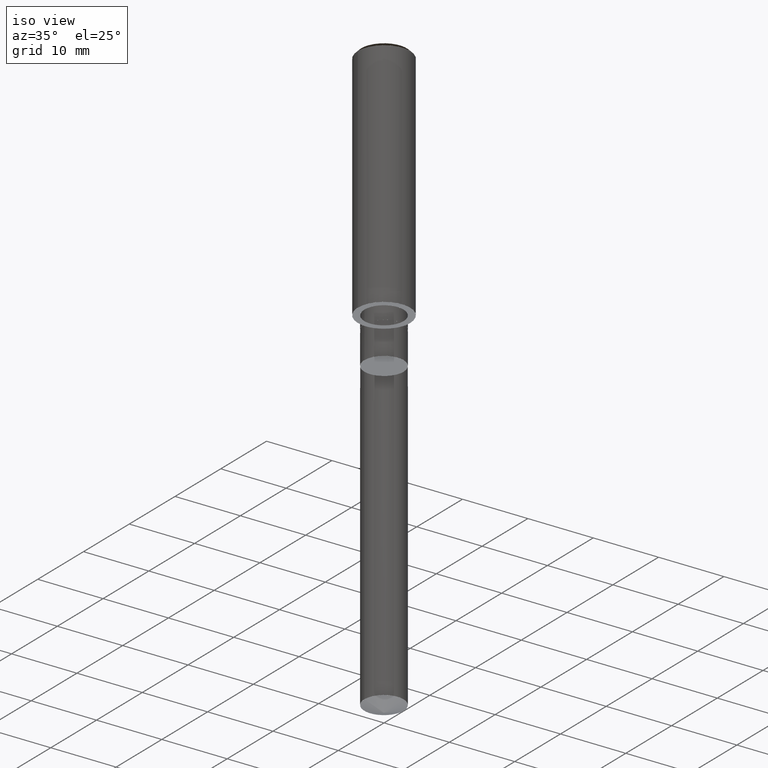
[diagram: clean part render]
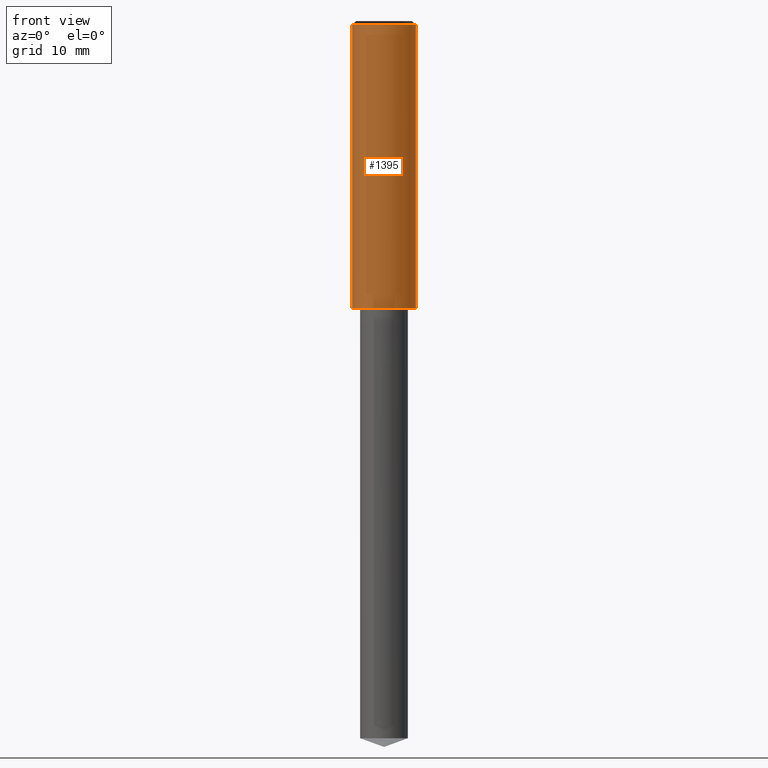
[diagram: tour spotlight — one face highlighted and labeled with its STEP entity id]
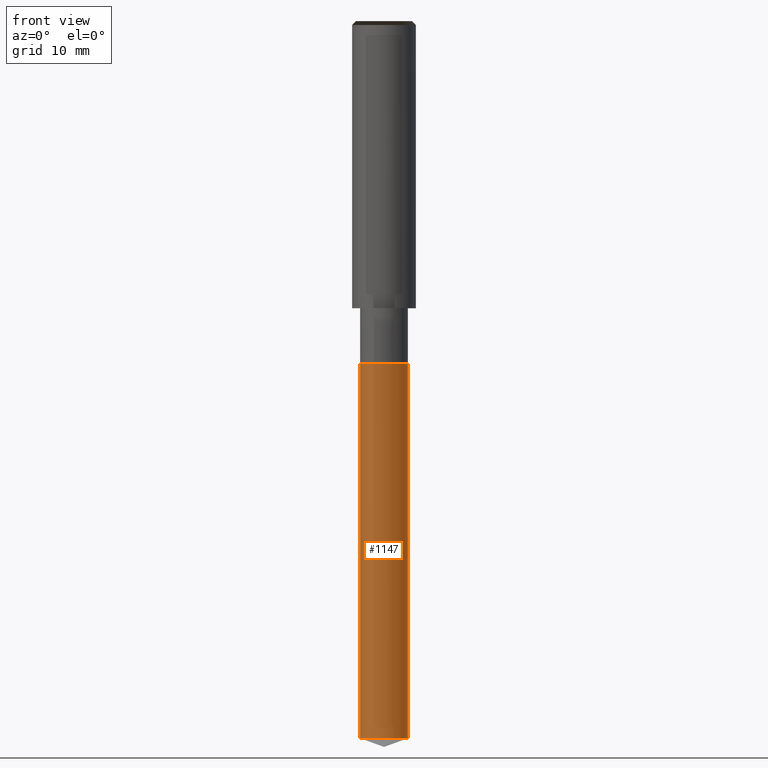
[diagram: tour spotlight — one face highlighted and labeled with its STEP entity id]
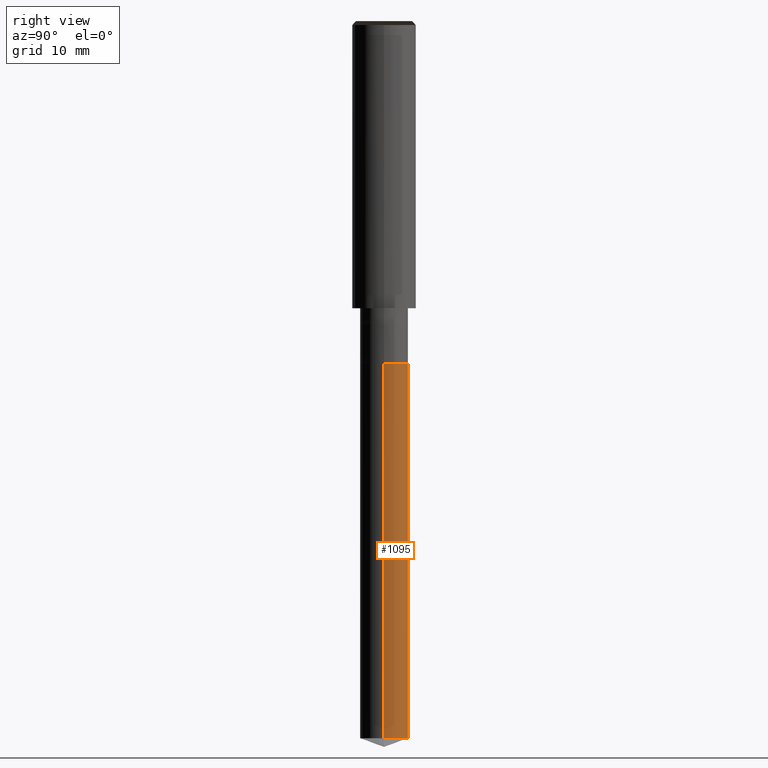
[diagram: tour spotlight — one face highlighted and labeled with its STEP entity id]
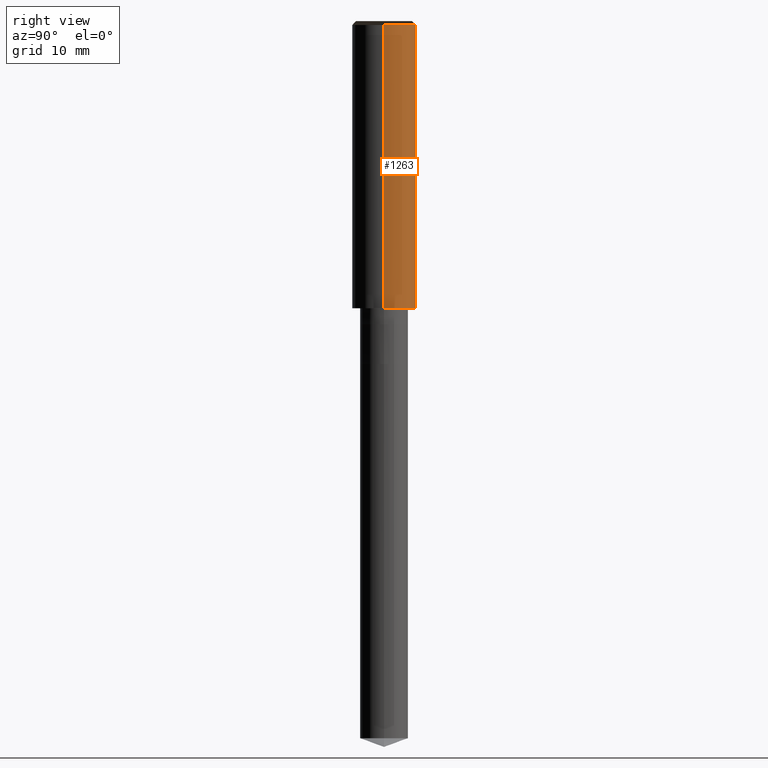
[diagram: tour spotlight — one face highlighted and labeled with its STEP entity id]
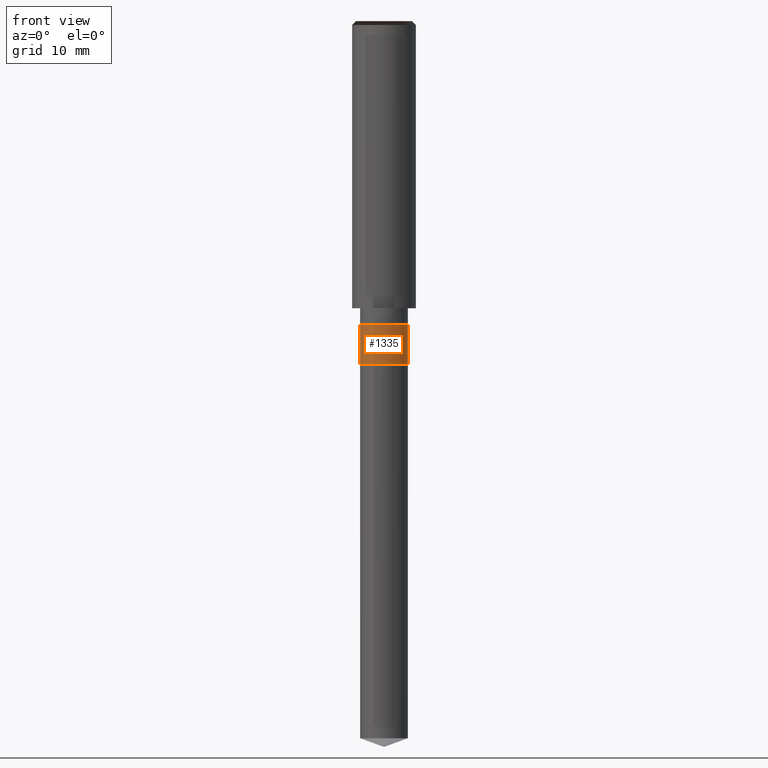
[diagram: tour spotlight — one face highlighted and labeled with its STEP entity id]
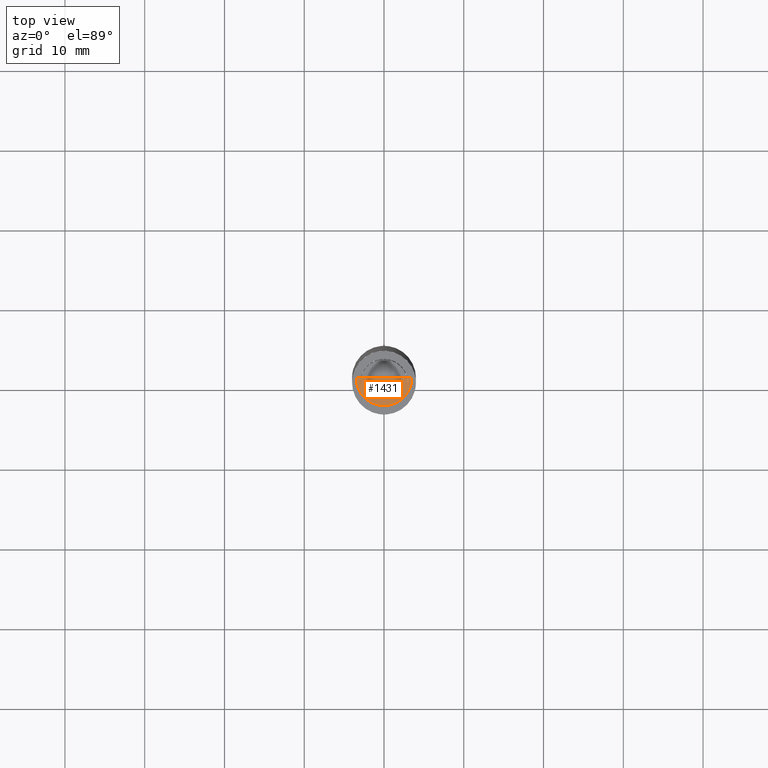
[diagram: tour spotlight — one face highlighted and labeled with its STEP entity id]
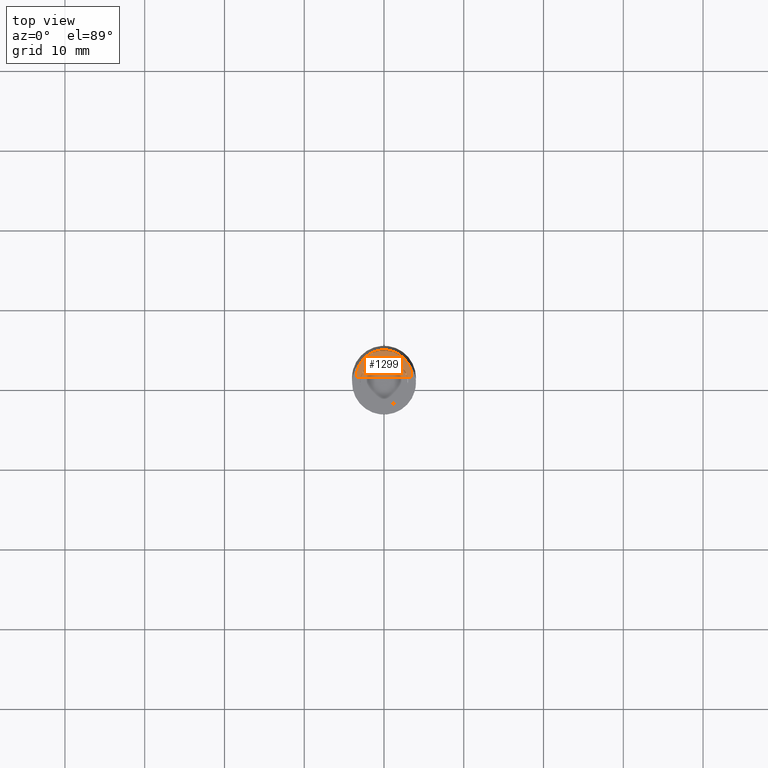
[diagram: tour spotlight — one face highlighted and labeled with its STEP entity id]
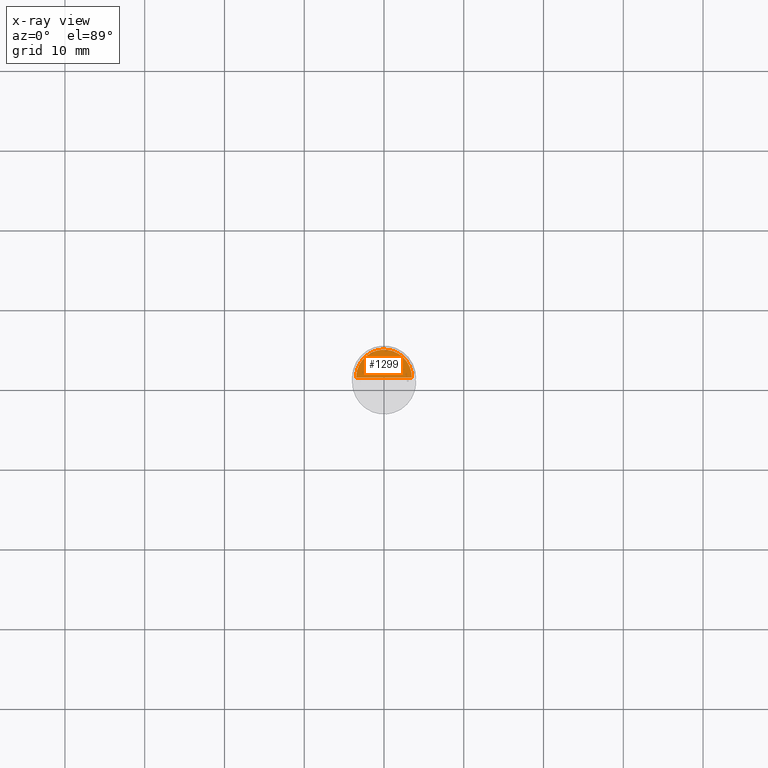
[diagram: x-ray of the same camera — body ghosted, this tour face saturated]
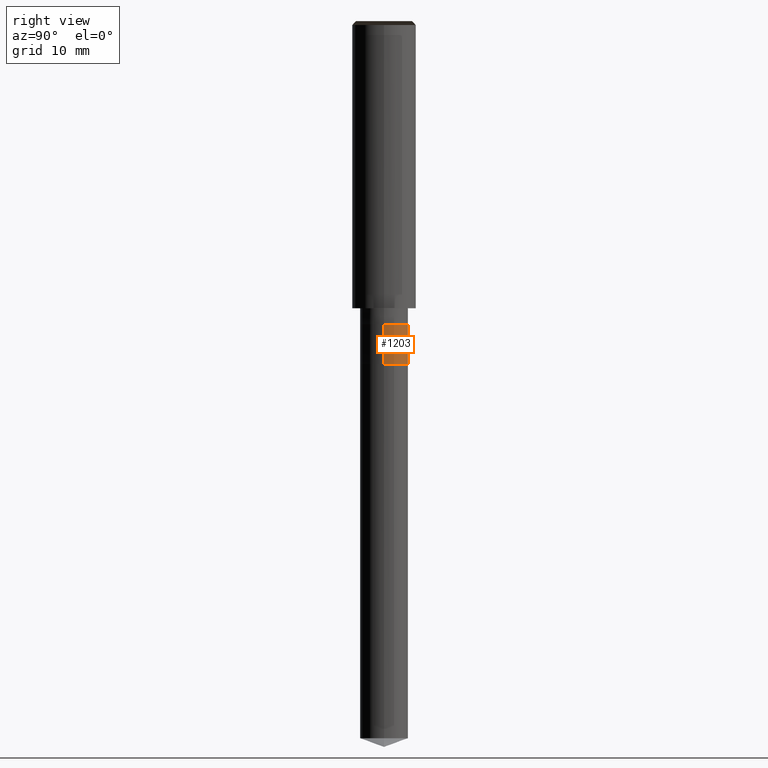
[diagram: tour spotlight — one face highlighted and labeled with its STEP entity id]
A machine part: a face-by-face anatomy tour. The part has 20 B-rep faces; the first image is the clean iso view, then the 8 largest visible faces are spotlighted one at a time (largest first), each with its STEP entity span.

Face 1 — front view, entity #1395. In plain terms, the highlighted face is a freeform B-spline surface patch.
Definition (entity closure, byte-faithful):
#1024=CARTESIAN_POINT('',(4.0,0.0,0.0));
#1028=CARTESIAN_POINT('',(-4.0,0.0,0.0));
#1029=CARTESIAN_POINT('',(4.0,0.0,35.5));
#1033=CARTESIAN_POINT('',(-4.0,0.0,35.5));
#1046=CARTESIAN_POINT('',(-4.0,-4.0,0.0));
#1047=CARTESIAN_POINT('',(0.0,-4.0,0.0));
#1048=CARTESIAN_POINT('',(4.0,-4.0,0.0));
#1049=CARTESIAN_POINT('',(-4.0,-4.0,35.5));
#1050=CARTESIAN_POINT('',(0.0,-4.0,35.5));
#1051=CARTESIAN_POINT('',(4.0,-4.0,35.5));
#1376=(
BOUNDED_SURFACE()
B_SPLINE_SURFACE(1,2,(
(#1028,#1046,#1047,#1048,#1024),
(#1033,#1049,#1050,#1051,#1029)
), .UNSPECIFIED.,.F.,.F.,.F.)
B_SPLINE_SURFACE_WITH_KNOTS((2,2),(3,2,3),(
0.0,1.0),(
0.0,0.5,1.0), .UNSPECIFIED.)
GEOMETRIC_REPRESENTATION_ITEM()
RATIONAL_B_SPLINE_SURFACE(((1.0,0.707106781187,1.0,0.707106781187,1.0),
(1.0,0.707106781187,1.0,0.707106781187,1.0)
))
REPRESENTATION_ITEM('')
SURFACE()
);
#1377=(
BOUNDED_CURVE()
B_SPLINE_CURVE(2,(#1024,#1048,#1047,#1046,#1028),.UNSPECIFIED.,.F.,.F.)
B_SPLINE_CURVE_WITH_KNOTS((3,2,3),
(0.0,0.5,1.0),.UNSPECIFIED.)
CURVE()
GEOMETRIC_REPRESENTATION_ITEM()
RATIONAL_B_SPLINE_CURVE((1.0,0.707106781187,1.0,0.707106781187,1.0))
REPRESENTATION_ITEM('')
);
#1378=(
BOUNDED_CURVE()
B_SPLINE_CURVE(1,(#1028,#1033),.UNSPECIFIED.,.F.,.F.)
B_SPLINE_CURVE_WITH_KNOTS((2,2),
(0.0,1.0),.UNSPECIFIED.)
CURVE()
GEOMETRIC_REPRESENTATION_ITEM()
RATIONAL_B_SPLINE_CURVE((1.0,1.0))
REPRESENTATION_ITEM('')
);
#1379=(
BOUNDED_CURVE()
B_SPLINE_CURVE(2,(#1033,#1049,#1050,#1051,#1029),.UNSPECIFIED.,.F.,.F.)
B_SPLINE_CURVE_WITH_KNOTS((3,2,3),
(0.0,0.5,1.0),.UNSPECIFIED.)
CURVE()
GEOMETRIC_REPRESENTATION_ITEM()
RATIONAL_B_SPLINE_CURVE((1.0,0.707106781187,1.0,0.707106781187,1.0))
REPRESENTATION_ITEM('')
);
#1380=(
BOUNDED_CURVE()
B_SPLINE_CURVE(1,(#1029,#1024),.UNSPECIFIED.,.F.,.F.)
B_SPLINE_CURVE_WITH_KNOTS((2,2),
(0.0,1.0),.UNSPECIFIED.)
CURVE()
GEOMETRIC_REPRESENTATION_ITEM()
RATIONAL_B_SPLINE_CURVE((1.0,1.0))
REPRESENTATION_ITEM('')
);
#1381=VERTEX_POINT('',#1024);
#1382=VERTEX_POINT('',#1028);
#1383=VERTEX_POINT('',#1029);
#1384=VERTEX_POINT('',#1033);
#1385=EDGE_CURVE('',#1381,#1382,#1377,.T.);
#1386=EDGE_CURVE('',#1382,#1384,#1378,.T.);
#1387=EDGE_CURVE('',#1384,#1383,#1379,.T.);
#1388=EDGE_CURVE('',#1383,#1381,#1380,.T.);
#1389=ORIENTED_EDGE('',*,*,#1385,.T.);
#1390=ORIENTED_EDGE('',*,*,#1386,.T.);
#1391=ORIENTED_EDGE('',*,*,#1387,.T.);
#1392=ORIENTED_EDGE('',*,*,#1388,.T.);
#1393=EDGE_LOOP('',(#1389,#1390,#1391,#1392));
#1394=FACE_OUTER_BOUND('',#1393,.T.);
#1395=ADVANCED_FACE('',(#1394),#1376,.T.);

Face 2 — front view, entity #1147. In plain terms, the highlighted face is a freeform B-spline surface patch.
Definition (entity closure, byte-faithful):
#997=CARTESIAN_POINT('',(3.0,0.0,-53.908089297201));
#1001=CARTESIAN_POINT('',(-3.0,0.0,-53.908089297201));
#1002=CARTESIAN_POINT('',(3.0,0.0,-7.0));
#1006=CARTESIAN_POINT('',(-3.0,0.0,-7.0));
#1008=CARTESIAN_POINT('',(-3.0,-3.0,-53.908089297201));
#1009=CARTESIAN_POINT('',(0.0,-3.0,-53.908089297201));
#1010=CARTESIAN_POINT('',(3.0,-3.0,-53.908089297201));
#1011=CARTESIAN_POINT('',(-3.0,-3.0,-7.0));
#1012=CARTESIAN_POINT('',(0.0,-3.0,-7.0));
#1013=CARTESIAN_POINT('',(3.0,-3.0,-7.0));
#1128=(
BOUNDED_SURFACE()
B_SPLINE_SURFACE(1,2,(
(#1001,#1008,#1009,#1010,#997),
(#1006,#1011,#1012,#1013,#1002)
), .UNSPECIFIED.,.F.,.F.,.F.)
B_SPLINE_SURFACE_WITH_KNOTS((2,2),(3,2,3),(
0.0,1.0),(
0.0,0.5,1.0), .UNSPECIFIED.)
GEOMETRIC_REPRESENTATION_ITEM()
RATIONAL_B_SPLINE_SURFACE(((1.0,0.707106781187,1.0,0.707106781187,1.0),
(1.0,0.707106781187,1.0,0.707106781187,1.0)
))
REPRESENTATION_ITEM('')
SURFACE()
);
#1129=(
BOUNDED_CURVE()
B_SPLINE_CURVE(2,(#997,#1010,#1009,#1008,#1001),.UNSPECIFIED.,.F.,.F.)
B_SPLINE_CURVE_WITH_KNOTS((3,2,3),
(0.0,0.5,1.0),.UNSPECIFIED.)
CURVE()
GEOMETRIC_REPRESENTATION_ITEM()
RATIONAL_B_SPLINE_CURVE((1.0,0.707106781187,1.0,0.707106781187,1.0))
REPRESENTATION_ITEM('')
);
#1130=(
BOUNDED_CURVE()
B_SPLINE_CURVE(1,(#1001,#1006),.UNSPECIFIED.,.F.,.F.)
B_SPLINE_CURVE_WITH_KNOTS((2,2),
(0.0,1.0),.UNSPECIFIED.)
CURVE()
GEOMETRIC_REPRESENTATION_ITEM()
RATIONAL_B_SPLINE_CURVE((1.0,1.0))
REPRESENTATION_ITEM('')
);
#1131=(
BOUNDED_CURVE()
B_SPLINE_CURVE(2,(#1006,#1011,#1012,#1013,#1002),.UNSPECIFIED.,.F.,.F.)
B_SPLINE_CURVE_WITH_KNOTS((3,2,3),
(0.0,0.5,1.0),.UNSPECIFIED.)
CURVE()
GEOMETRIC_REPRESENTATION_ITEM()
RATIONAL_B_SPLINE_CURVE((1.0,0.707106781187,1.0,0.707106781187,1.0))
REPRESENTATION_ITEM('')
);
#1132=(
BOUNDED_CURVE()
B_SPLINE_CURVE(1,(#1002,#997),.UNSPECIFIED.,.F.,.F.)
B_SPLINE_CURVE_WITH_KNOTS((2,2),
(0.0,1.0),.UNSPECIFIED.)
CURVE()
GEOMETRIC_REPRESENTATION_ITEM()
RATIONAL_B_SPLINE_CURVE((1.0,1.0))
REPRESENTATION_ITEM('')
);
#1133=VERTEX_POINT('',#997);
#1134=VERTEX_POINT('',#1001);
#1135=VERTEX_POINT('',#1002);
#1136=VERTEX_POINT('',#1006);
#1137=EDGE_CURVE('',#1133,#1134,#1129,.T.);
#1138=EDGE_CURVE('',#1134,#1136,#1130,.T.);
#1139=EDGE_CURVE('',#1136,#1135,#1131,.T.);
#1140=EDGE_CURVE('',#1135,#1133,#1132,.T.);
#1141=ORIENTED_EDGE('',*,*,#1137,.T.);
#1142=ORIENTED_EDGE('',*,*,#1138,.T.);
#1143=ORIENTED_EDGE('',*,*,#1139,.T.);
#1144=ORIENTED_EDGE('',*,*,#1140,.T.);
#1145=EDGE_LOOP('',(#1141,#1142,#1143,#1144));
#1146=FACE_OUTER_BOUND('',#1145,.T.);
#1147=ADVANCED_FACE('',(#1146),#1128,.T.);

Face 3 — right view, entity #1095. In plain terms, the highlighted face is a freeform B-spline surface patch.
Definition (entity closure, byte-faithful):
#997=CARTESIAN_POINT('',(3.0,0.0,-53.908089297201));
#998=CARTESIAN_POINT('',(3.0,3.0,-53.908089297201));
#999=CARTESIAN_POINT('',(0.0,3.0,-53.908089297201));
#1000=CARTESIAN_POINT('',(-3.0,3.0,-53.908089297201));
#1001=CARTESIAN_POINT('',(-3.0,0.0,-53.908089297201));
#1002=CARTESIAN_POINT('',(3.0,0.0,-7.0));
#1003=CARTESIAN_POINT('',(3.0,3.0,-7.0));
#1004=CARTESIAN_POINT('',(0.0,3.0,-7.0));
#1005=CARTESIAN_POINT('',(-3.0,3.0,-7.0));
#1006=CARTESIAN_POINT('',(-3.0,0.0,-7.0));
#1076=(
BOUNDED_SURFACE()
B_SPLINE_SURFACE(1,2,(
(#997,#998,#999,#1000,#1001),
(#1002,#1003,#1004,#1005,#1006)
), .UNSPECIFIED.,.F.,.F.,.F.)
B_SPLINE_SURFACE_WITH_KNOTS((2,2),(3,2,3),(
0.0,1.0),(
0.0,0.5,1.0), .UNSPECIFIED.)
GEOMETRIC_REPRESENTATION_ITEM()
RATIONAL_B_SPLINE_SURFACE(((1.0,0.707106781187,1.0,0.707106781187,1.0),
(1.0,0.707106781187,1.0,0.707106781187,1.0)
))
REPRESENTATION_ITEM('')
SURFACE()
);
#1077=(
BOUNDED_CURVE()
B_SPLINE_CURVE(2,(#1001,#1000,#999,#998,#997),.UNSPECIFIED.,.F.,.F.)
B_SPLINE_CURVE_WITH_KNOTS((3,2,3),
(0.0,0.5,1.0),.UNSPECIFIED.)
CURVE()
GEOMETRIC_REPRESENTATION_ITEM()
RATIONAL_B_SPLINE_CURVE((1.0,0.707106781187,1.0,0.707106781187,1.0))
REPRESENTATION_ITEM('')
);
#1078=(
BOUNDED_CURVE()
B_SPLINE_CURVE(1,(#997,#1002),.UNSPECIFIED.,.F.,.F.)
B_SPLINE_CURVE_WITH_KNOTS((2,2),
(0.0,1.0),.UNSPECIFIED.)
CURVE()
GEOMETRIC_REPRESENTATION_ITEM()
RATIONAL_B_SPLINE_CURVE((1.0,1.0))
REPRESENTATION_ITEM('')
);
#1079=(
BOUNDED_CURVE()
B_SPLINE_CURVE(2,(#1002,#1003,#1004,#1005,#1006),.UNSPECIFIED.,.F.,.F.)
B_SPLINE_CURVE_WITH_KNOTS((3,2,3),
(0.0,0.5,1.0),.UNSPECIFIED.)
CURVE()
GEOMETRIC_REPRESENTATION_ITEM()
RATIONAL_B_SPLINE_CURVE((1.0,0.707106781187,1.0,0.707106781187,1.0))
REPRESENTATION_ITEM('')
);
#1080=(
BOUNDED_CURVE()
B_SPLINE_CURVE(1,(#1006,#1001),.UNSPECIFIED.,.F.,.F.)
B_SPLINE_CURVE_WITH_KNOTS((2,2),
(0.0,1.0),.UNSPECIFIED.)
CURVE()
GEOMETRIC_REPRESENTATION_ITEM()
RATIONAL_B_SPLINE_CURVE((1.0,1.0))
REPRESENTATION_ITEM('')
);
#1081=VERTEX_POINT('',#997);
#1082=VERTEX_POINT('',#1001);
#1083=VERTEX_POINT('',#1002);
#1084=VERTEX_POINT('',#1006);
#1085=EDGE_CURVE('',#1082,#1081,#1077,.T.);
#1086=EDGE_CURVE('',#1081,#1083,#1078,.T.);
#1087=EDGE_CURVE('',#1083,#1084,#1079,.T.);
#1088=EDGE_CURVE('',#1084,#1082,#1080,.T.);
#1089=ORIENTED_EDGE('',*,*,#1085,.T.);
#1090=ORIENTED_EDGE('',*,*,#1086,.T.);
#1091=ORIENTED_EDGE('',*,*,#1087,.T.);
#1092=ORIENTED_EDGE('',*,*,#1088,.T.);
#1093=EDGE_LOOP('',(#1089,#1090,#1091,#1092));
#1094=FACE_OUTER_BOUND('',#1093,.T.);
#1095=ADVANCED_FACE('',(#1094),#1076,.T.);

Face 4 — right view, entity #1263. In plain terms, the highlighted face is a freeform B-spline surface patch.
Definition (entity closure, byte-faithful):
#1024=CARTESIAN_POINT('',(4.0,0.0,0.0));
#1025=CARTESIAN_POINT('',(4.0,4.0,0.0));
#1026=CARTESIAN_POINT('',(0.0,4.0,0.0));
#1027=CARTESIAN_POINT('',(-4.0,4.0,0.0));
#1028=CARTESIAN_POINT('',(-4.0,0.0,0.0));
#1029=CARTESIAN_POINT('',(4.0,0.0,35.5));
#1030=CARTESIAN_POINT('',(4.0,4.0,35.5));
#1031=CARTESIAN_POINT('',(0.0,4.0,35.5));
#1032=CARTESIAN_POINT('',(-4.0,4.0,35.5));
#1033=CARTESIAN_POINT('',(-4.0,0.0,35.5));
#1244=(
BOUNDED_SURFACE()
B_SPLINE_SURFACE(1,2,(
(#1024,#1025,#1026,#1027,#1028),
(#1029,#1030,#1031,#1032,#1033)
), .UNSPECIFIED.,.F.,.F.,.F.)
B_SPLINE_SURFACE_WITH_KNOTS((2,2),(3,2,3),(
0.0,1.0),(
0.0,0.5,1.0), .UNSPECIFIED.)
GEOMETRIC_REPRESENTATION_ITEM()
RATIONAL_B_SPLINE_SURFACE(((1.0,0.707106781187,1.0,0.707106781187,1.0),
(1.0,0.707106781187,1.0,0.707106781187,1.0)
))
REPRESENTATION_ITEM('')
SURFACE()
);
#1245=(
BOUNDED_CURVE()
B_SPLINE_CURVE(2,(#1028,#1027,#1026,#1025,#1024),.UNSPECIFIED.,.F.,.F.)
B_SPLINE_CURVE_WITH_KNOTS((3,2,3),
(0.0,0.5,1.0),.UNSPECIFIED.)
CURVE()
GEOMETRIC_REPRESENTATION_ITEM()
RATIONAL_B_SPLINE_CURVE((1.0,0.707106781187,1.0,0.707106781187,1.0))
REPRESENTATION_ITEM('')
);
#1246=(
BOUNDED_CURVE()
B_SPLINE_CURVE(1,(#1024,#1029),.UNSPECIFIED.,.F.,.F.)
B_SPLINE_CURVE_WITH_KNOTS((2,2),
(0.0,1.0),.UNSPECIFIED.)
CURVE()
GEOMETRIC_REPRESENTATION_ITEM()
RATIONAL_B_SPLINE_CURVE((1.0,1.0))
REPRESENTATION_ITEM('')
);
#1247=(
BOUNDED_CURVE()
B_SPLINE_CURVE(2,(#1029,#1030,#1031,#1032,#1033),.UNSPECIFIED.,.F.,.F.)
B_SPLINE_CURVE_WITH_KNOTS((3,2,3),
(0.0,0.5,1.0),.UNSPECIFIED.)
CURVE()
GEOMETRIC_REPRESENTATION_ITEM()
RATIONAL_B_SPLINE_CURVE((1.0,0.707106781187,1.0,0.707106781187,1.0))
REPRESENTATION_ITEM('')
);
#1248=(
BOUNDED_CURVE()
B_SPLINE_CURVE(1,(#1033,#1028),.UNSPECIFIED.,.F.,.F.)
B_SPLINE_CURVE_WITH_KNOTS((2,2),
(0.0,1.0),.UNSPECIFIED.)
CURVE()
GEOMETRIC_REPRESENTATION_ITEM()
RATIONAL_B_SPLINE_CURVE((1.0,1.0))
REPRESENTATION_ITEM('')
);
#1249=VERTEX_POINT('',#1024);
#1250=VERTEX_POINT('',#1028);
#1251=VERTEX_POINT('',#1029);
#1252=VERTEX_POINT('',#1033);
#1253=EDGE_CURVE('',#1250,#1249,#1245,.T.);
#1254=EDGE_CURVE('',#1249,#1251,#1246,.T.);
#1255=EDGE_CURVE('',#1251,#1252,#1247,.T.);
#1256=EDGE_CURVE('',#1252,#1250,#1248,.T.);
#1257=ORIENTED_EDGE('',*,*,#1253,.T.);
#1258=ORIENTED_EDGE('',*,*,#1254,.T.);
#1259=ORIENTED_EDGE('',*,*,#1255,.T.);
#1260=ORIENTED_EDGE('',*,*,#1256,.T.);
#1261=EDGE_LOOP('',(#1257,#1258,#1259,#1260));
#1262=FACE_OUTER_BOUND('',#1261,.T.);
#1263=ADVANCED_FACE('',(#1262),#1244,.T.);

Face 5 — front view, entity #1335. In plain terms, the highlighted face is a freeform B-spline surface patch.
Definition (entity closure, byte-faithful):
#1002=CARTESIAN_POINT('',(3.0,0.0,-7.0));
#1006=CARTESIAN_POINT('',(-3.0,0.0,-7.0));
#1011=CARTESIAN_POINT('',(-3.0,-3.0,-7.0));
#1012=CARTESIAN_POINT('',(0.0,-3.0,-7.0));
#1013=CARTESIAN_POINT('',(3.0,-3.0,-7.0));
#1014=CARTESIAN_POINT('',(3.0,0.0,-2.0));
#1018=CARTESIAN_POINT('',(-3.0,0.0,-2.0));
#1040=CARTESIAN_POINT('',(-3.0,-3.0,-2.0));
#1041=CARTESIAN_POINT('',(0.0,-3.0,-2.0));
#1042=CARTESIAN_POINT('',(3.0,-3.0,-2.0));
#1316=(
BOUNDED_SURFACE()
B_SPLINE_SURFACE(1,2,(
(#1006,#1011,#1012,#1013,#1002),
(#1018,#1040,#1041,#1042,#1014)
), .UNSPECIFIED.,.F.,.F.,.F.)
B_SPLINE_SURFACE_WITH_KNOTS((2,2),(3,2,3),(
0.0,1.0),(
0.0,0.5,1.0), .UNSPECIFIED.)
GEOMETRIC_REPRESENTATION_ITEM()
RATIONAL_B_SPLINE_SURFACE(((1.0,0.707106781187,1.0,0.707106781187,1.0),
(1.0,0.707106781187,1.0,0.707106781187,1.0)
))
REPRESENTATION_ITEM('')
SURFACE()
);
#1317=(
BOUNDED_CURVE()
B_SPLINE_CURVE(2,(#1002,#1013,#1012,#1011,#1006),.UNSPECIFIED.,.F.,.F.)
B_SPLINE_CURVE_WITH_KNOTS((3,2,3),
(0.0,0.5,1.0),.UNSPECIFIED.)
CURVE()
GEOMETRIC_REPRESENTATION_ITEM()
RATIONAL_B_SPLINE_CURVE((1.0,0.707106781187,1.0,0.707106781187,1.0))
REPRESENTATION_ITEM('')
);
#1318=(
BOUNDED_CURVE()
B_SPLINE_CURVE(1,(#1006,#1018),.UNSPECIFIED.,.F.,.F.)
B_SPLINE_CURVE_WITH_KNOTS((2,2),
(0.0,1.0),.UNSPECIFIED.)
CURVE()
GEOMETRIC_REPRESENTATION_ITEM()
RATIONAL_B_SPLINE_CURVE((1.0,1.0))
REPRESENTATION_ITEM('')
);
#1319=(
BOUNDED_CURVE()
B_SPLINE_CURVE(2,(#1018,#1040,#1041,#1042,#1014),.UNSPECIFIED.,.F.,.F.)
B_SPLINE_CURVE_WITH_KNOTS((3,2,3),
(0.0,0.5,1.0),.UNSPECIFIED.)
CURVE()
GEOMETRIC_REPRESENTATION_ITEM()
RATIONAL_B_SPLINE_CURVE((1.0,0.707106781187,1.0,0.707106781187,1.0))
REPRESENTATION_ITEM('')
);
#1320=(
BOUNDED_CURVE()
B_SPLINE_CURVE(1,(#1014,#1002),.UNSPECIFIED.,.F.,.F.)
B_SPLINE_CURVE_WITH_KNOTS((2,2),
(0.0,1.0),.UNSPECIFIED.)
CURVE()
GEOMETRIC_REPRESENTATION_ITEM()
RATIONAL_B_SPLINE_CURVE((1.0,1.0))
REPRESENTATION_ITEM('')
);
#1321=VERTEX_POINT('',#1002);
#1322=VERTEX_POINT('',#1006);
#1323=VERTEX_POINT('',#1014);
#1324=VERTEX_POINT('',#1018);
#1325=EDGE_CURVE('',#1321,#1322,#1317,.T.);
#1326=EDGE_CURVE('',#1322,#1324,#1318,.T.);
#1327=EDGE_CURVE('',#1324,#1323,#1319,.T.);
#1328=EDGE_CURVE('',#1323,#1321,#1320,.T.);
#1329=ORIENTED_EDGE('',*,*,#1325,.T.);
#1330=ORIENTED_EDGE('',*,*,#1326,.T.);
#1331=ORIENTED_EDGE('',*,*,#1327,.T.);
#1332=ORIENTED_EDGE('',*,*,#1328,.T.);
#1333=EDGE_LOOP('',(#1329,#1330,#1331,#1332));
#1334=FACE_OUTER_BOUND('',#1333,.T.);
#1335=ADVANCED_FACE('',(#1334),#1316,.T.);

Face 6 — top view, entity #1431. In plain terms, the highlighted face is a freeform B-spline surface patch.
Definition (entity closure, byte-faithful):
#1034=CARTESIAN_POINT('',(3.5,0.0,36.0));
#1038=CARTESIAN_POINT('',(-3.5,0.0,36.0));
#1039=CARTESIAN_POINT('',(0.0,0.0,36.0));
#1052=CARTESIAN_POINT('',(-3.5,-3.5,36.0));
#1053=CARTESIAN_POINT('',(0.0,-3.5,36.0));
#1054=CARTESIAN_POINT('',(3.5,-3.5,36.0));
#1416=(
BOUNDED_SURFACE()
B_SPLINE_SURFACE(1,2,(
(#1038,#1052,#1053,#1054,#1034),
(#1039,#1039,#1039,#1039,#1039)
), .UNSPECIFIED.,.F.,.F.,.F.)
B_SPLINE_SURFACE_WITH_KNOTS((2,2),(3,2,3),(
0.0,1.0),(
0.0,0.5,1.0), .UNSPECIFIED.)
GEOMETRIC_REPRESENTATION_ITEM()
RATIONAL_B_SPLINE_SURFACE(((1.0,0.707106781187,1.0,0.707106781187,1.0),
(1.0,0.707106781187,1.0,0.707106781187,1.0)
))
REPRESENTATION_ITEM('')
SURFACE()
);
#1417=(
BOUNDED_CURVE()
B_SPLINE_CURVE(2,(#1034,#1054,#1053,#1052,#1038),.UNSPECIFIED.,.F.,.F.)
B_SPLINE_CURVE_WITH_KNOTS((3,2,3),
(0.0,0.5,1.0),.UNSPECIFIED.)
CURVE()
GEOMETRIC_REPRESENTATION_ITEM()
RATIONAL_B_SPLINE_CURVE((1.0,0.707106781187,1.0,0.707106781187,1.0))
REPRESENTATION_ITEM('')
);
#1418=(
BOUNDED_CURVE()
B_SPLINE_CURVE(1,(#1038,#1039),.UNSPECIFIED.,.F.,.F.)
B_SPLINE_CURVE_WITH_KNOTS((2,2),
(0.0,1.0),.UNSPECIFIED.)
CURVE()
GEOMETRIC_REPRESENTATION_ITEM()
RATIONAL_B_SPLINE_CURVE((1.0,1.0))
REPRESENTATION_ITEM('')
);
#1419=(
BOUNDED_CURVE()
B_SPLINE_CURVE(1,(#1039,#1034),.UNSPECIFIED.,.F.,.F.)
B_SPLINE_CURVE_WITH_KNOTS((2,2),
(0.0,1.0),.UNSPECIFIED.)
CURVE()
GEOMETRIC_REPRESENTATION_ITEM()
RATIONAL_B_SPLINE_CURVE((1.0,1.0))
REPRESENTATION_ITEM('')
);
#1420=VERTEX_POINT('',#1034);
#1421=VERTEX_POINT('',#1038);
#1422=VERTEX_POINT('',#1039);
#1423=EDGE_CURVE('',#1420,#1421,#1417,.T.);
#1424=EDGE_CURVE('',#1421,#1422,#1418,.T.);
#1425=EDGE_CURVE('',#1422,#1420,#1419,.T.);
#1426=ORIENTED_EDGE('',*,*,#1423,.T.);
#1427=ORIENTED_EDGE('',*,*,#1424,.T.);
#1428=ORIENTED_EDGE('',*,*,#1425,.T.);
#1429=EDGE_LOOP('',(#1426,#1427,#1428));
#1430=FACE_OUTER_BOUND('',#1429,.T.);
#1431=ADVANCED_FACE('',(#1430),#1416,.T.);

Face 7 — top view, entity #1299. An x-ray twin of the same camera follows (body ghosted, this face saturated) — the face is partly hidden behind the body. In plain terms, the highlighted face is a freeform B-spline surface patch.
Definition (entity closure, byte-faithful):
#1034=CARTESIAN_POINT('',(3.5,0.0,36.0));
#1035=CARTESIAN_POINT('',(3.5,3.5,36.0));
#1036=CARTESIAN_POINT('',(0.0,3.5,36.0));
#1037=CARTESIAN_POINT('',(-3.5,3.5,36.0));
#1038=CARTESIAN_POINT('',(-3.5,0.0,36.0));
#1039=CARTESIAN_POINT('',(0.0,0.0,36.0));
#1284=(
BOUNDED_SURFACE()
B_SPLINE_SURFACE(1,2,(
(#1034,#1035,#1036,#1037,#1038),
(#1039,#1039,#1039,#1039,#1039)
), .UNSPECIFIED.,.F.,.F.,.F.)
B_SPLINE_SURFACE_WITH_KNOTS((2,2),(3,2,3),(
0.0,1.0),(
0.0,0.5,1.0), .UNSPECIFIED.)
GEOMETRIC_REPRESENTATION_ITEM()
RATIONAL_B_SPLINE_SURFACE(((1.0,0.707106781187,1.0,0.707106781187,1.0),
(1.0,0.707106781187,1.0,0.707106781187,1.0)
))
REPRESENTATION_ITEM('')
SURFACE()
);
#1285=(
BOUNDED_CURVE()
B_SPLINE_CURVE(2,(#1038,#1037,#1036,#1035,#1034),.UNSPECIFIED.,.F.,.F.)
B_SPLINE_CURVE_WITH_KNOTS((3,2,3),
(0.0,0.5,1.0),.UNSPECIFIED.)
CURVE()
GEOMETRIC_REPRESENTATION_ITEM()
RATIONAL_B_SPLINE_CURVE((1.0,0.707106781187,1.0,0.707106781187,1.0))
REPRESENTATION_ITEM('')
);
#1286=(
BOUNDED_CURVE()
B_SPLINE_CURVE(1,(#1034,#1039),.UNSPECIFIED.,.F.,.F.)
B_SPLINE_CURVE_WITH_KNOTS((2,2),
(0.0,1.0),.UNSPECIFIED.)
CURVE()
GEOMETRIC_REPRESENTATION_ITEM()
RATIONAL_B_SPLINE_CURVE((1.0,1.0))
REPRESENTATION_ITEM('')
);
#1287=(
BOUNDED_CURVE()
B_SPLINE_CURVE(1,(#1039,#1038),.UNSPECIFIED.,.F.,.F.)
B_SPLINE_CURVE_WITH_KNOTS((2,2),
(0.0,1.0),.UNSPECIFIED.)
CURVE()
GEOMETRIC_REPRESENTATION_ITEM()
RATIONAL_B_SPLINE_CURVE((1.0,1.0))
REPRESENTATION_ITEM('')
);
#1288=VERTEX_POINT('',#1034);
#1289=VERTEX_POINT('',#1038);
#1290=VERTEX_POINT('',#1039);
#1291=EDGE_CURVE('',#1289,#1288,#1285,.T.);
#1292=EDGE_CURVE('',#1288,#1290,#1286,.T.);
#1293=EDGE_CURVE('',#1290,#1289,#1287,.T.);
#1294=ORIENTED_EDGE('',*,*,#1291,.T.);
#1295=ORIENTED_EDGE('',*,*,#1292,.T.);
#1296=ORIENTED_EDGE('',*,*,#1293,.T.);
#1297=EDGE_LOOP('',(#1294,#1295,#1296));
#1298=FACE_OUTER_BOUND('',#1297,.T.);
#1299=ADVANCED_FACE('',(#1298),#1284,.T.);

Face 8 — right view, entity #1203. In plain terms, the highlighted face is a freeform B-spline surface patch.
Definition (entity closure, byte-faithful):
#1002=CARTESIAN_POINT('',(3.0,0.0,-7.0));
#1003=CARTESIAN_POINT('',(3.0,3.0,-7.0));
#1004=CARTESIAN_POINT('',(0.0,3.0,-7.0));
#1005=CARTESIAN_POINT('',(-3.0,3.0,-7.0));
#1006=CARTESIAN_POINT('',(-3.0,0.0,-7.0));
#1014=CARTESIAN_POINT('',(3.0,0.0,-2.0));
#1015=CARTESIAN_POINT('',(3.0,3.0,-2.0));
#1016=CARTESIAN_POINT('',(0.0,3.0,-2.0));
#1017=CARTESIAN_POINT('',(-3.0,3.0,-2.0));
#1018=CARTESIAN_POINT('',(-3.0,0.0,-2.0));
#1184=(
BOUNDED_SURFACE()
B_SPLINE_SURFACE(1,2,(
(#1002,#1003,#1004,#1005,#1006),
(#1014,#1015,#1016,#1017,#1018)
), .UNSPECIFIED.,.F.,.F.,.F.)
B_SPLINE_SURFACE_WITH_KNOTS((2,2),(3,2,3),(
0.0,1.0),(
0.0,0.5,1.0), .UNSPECIFIED.)
GEOMETRIC_REPRESENTATION_ITEM()
RATIONAL_B_SPLINE_SURFACE(((1.0,0.707106781187,1.0,0.707106781187,1.0),
(1.0,0.707106781187,1.0,0.707106781187,1.0)
))
REPRESENTATION_ITEM('')
SURFACE()
);
#1185=(
BOUNDED_CURVE()
B_SPLINE_CURVE(2,(#1006,#1005,#1004,#1003,#1002),.UNSPECIFIED.,.F.,.F.)
B_SPLINE_CURVE_WITH_KNOTS((3,2,3),
(0.0,0.5,1.0),.UNSPECIFIED.)
CURVE()
GEOMETRIC_REPRESENTATION_ITEM()
RATIONAL_B_SPLINE_CURVE((1.0,0.707106781187,1.0,0.707106781187,1.0))
REPRESENTATION_ITEM('')
);
#1186=(
BOUNDED_CURVE()
B_SPLINE_CURVE(1,(#1002,#1014),.UNSPECIFIED.,.F.,.F.)
B_SPLINE_CURVE_WITH_KNOTS((2,2),
(0.0,1.0),.UNSPECIFIED.)
CURVE()
GEOMETRIC_REPRESENTATION_ITEM()
RATIONAL_B_SPLINE_CURVE((1.0,1.0))
REPRESENTATION_ITEM('')
);
#1187=(
BOUNDED_CURVE()
B_SPLINE_CURVE(2,(#1014,#1015,#1016,#1017,#1018),.UNSPECIFIED.,.F.,.F.)
B_SPLINE_CURVE_WITH_KNOTS((3,2,3),
(0.0,0.5,1.0),.UNSPECIFIED.)
CURVE()
GEOMETRIC_REPRESENTATION_ITEM()
RATIONAL_B_SPLINE_CURVE((1.0,0.707106781187,1.0,0.707106781187,1.0))
REPRESENTATION_ITEM('')
);
#1188=(
BOUNDED_CURVE()
B_SPLINE_CURVE(1,(#1018,#1006),.UNSPECIFIED.,.F.,.F.)
B_SPLINE_CURVE_WITH_KNOTS((2,2),
(0.0,1.0),.UNSPECIFIED.)
CURVE()
GEOMETRIC_REPRESENTATION_ITEM()
RATIONAL_B_SPLINE_CURVE((1.0,1.0))
REPRESENTATION_ITEM('')
);
#1189=VERTEX_POINT('',#1002);
#1190=VERTEX_POINT('',#1006);
#1191=VERTEX_POINT('',#1014);
#1192=VERTEX_POINT('',#1018);
#1193=EDGE_CURVE('',#1190,#1189,#1185,.T.);
#1194=EDGE_CURVE('',#1189,#1191,#1186,.T.);
#1195=EDGE_CURVE('',#1191,#1192,#1187,.T.);
#1196=EDGE_CURVE('',#1192,#1190,#1188,.T.);
#1197=ORIENTED_EDGE('',*,*,#1193,.T.);
#1198=ORIENTED_EDGE('',*,*,#1194,.T.);
#1199=ORIENTED_EDGE('',*,*,#1195,.T.);
#1200=ORIENTED_EDGE('',*,*,#1196,.T.);
#1201=EDGE_LOOP('',(#1197,#1198,#1199,#1200));
#1202=FACE_OUTER_BOUND('',#1201,.T.);
#1203=ADVANCED_FACE('',(#1202),#1184,.T.);